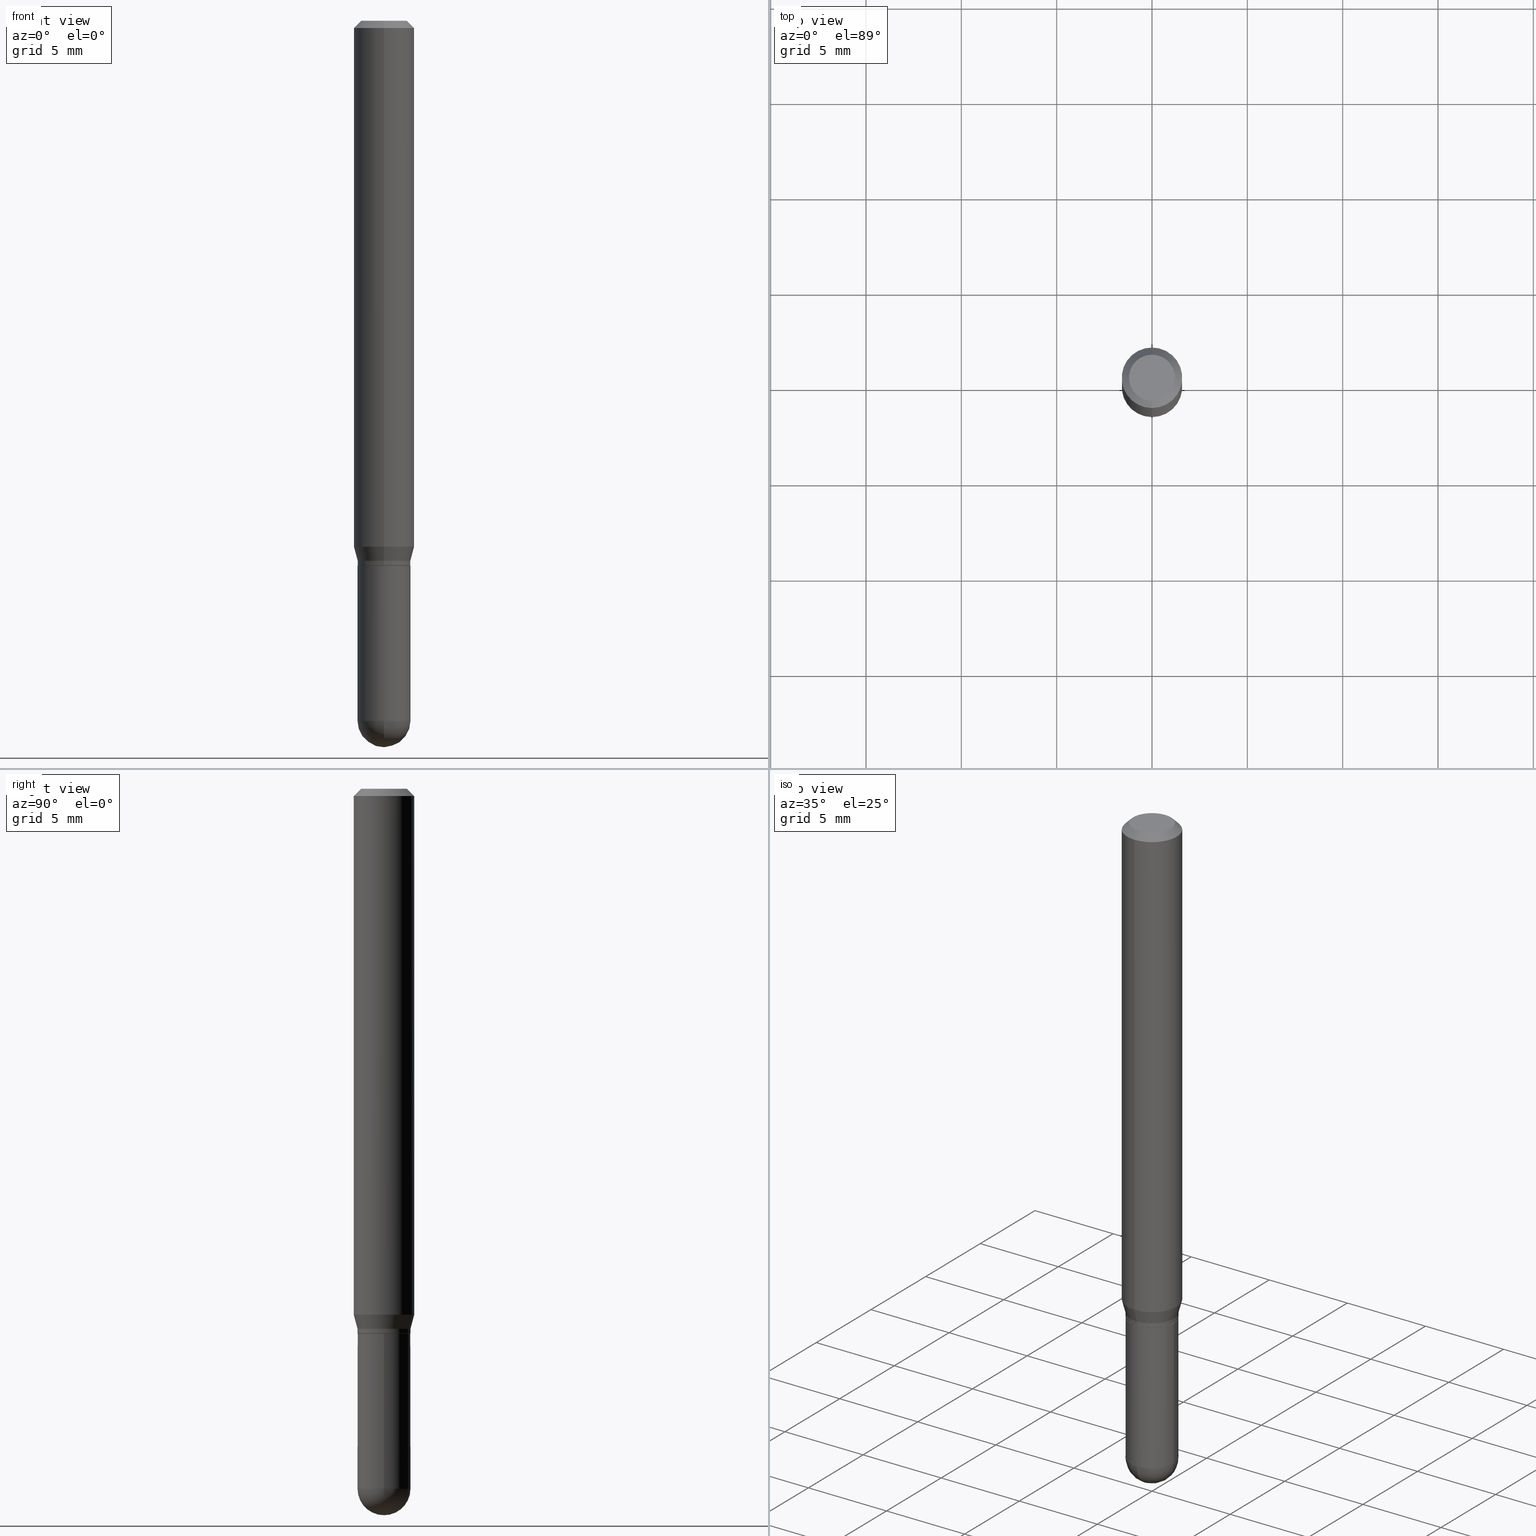
[diagram: canonical four-view strip — front | top / right | iso, engineering-drawing reading convention]
A machine part, canonical four-view strip (front | top / right | iso — engineering-drawing reading convention). The complete STEP part file that produces these views, byte-faithful:
ISO-10303-21;
HEADER;
FILE_DESCRIPTION (( 'STEP AP203' ),
    '1' );
FILE_NAME ('39014.STEP',
    '2024-03-08T12:43:18',
    ( '' ),
    ( '' ),
    'SwSTEP 2.0',
    'SolidWorks 2023',
    '' );
FILE_SCHEMA (( 'CONFIG_CONTROL_DESIGN' ));
ENDSEC;

DATA;
#1 = CIRCLE ( 'NONE', #296, 0.05469999999999999862 ) ;
#2 = FACE_OUTER_BOUND ( 'NONE', #30, .T. ) ;
#3 = VERTEX_POINT ( 'NONE', #398 ) ;
#4 = DIRECTION ( 'NONE',  ( -2.445148059648714686E-29, 3.491940666139061088E-15, 1.000000000000000000 ) ) ;
#5 = EDGE_CURVE ( 'NONE', #106, #423, #444, .T. ) ;
#6 = CARTESIAN_POINT ( 'NONE',  ( 4.440892098500889444E-16, 0.06249999999999619055, -1.085890003700964002 ) ) ;
#7 = DIRECTION ( 'NONE',  ( 2.445148059648714686E-29, -3.491940666139061088E-15, -1.000000000000000000 ) ) ;
#8 = CARTESIAN_POINT ( 'NONE',  ( 0.000000000000000000, 0.000000000000000000, 0.000000000000000000 ) ) ;
#9 = DIRECTION ( 'NONE',  ( -2.445148059648714686E-29, 3.491940666139061088E-15, 1.000000000000000000 ) ) ;
#10 = CIRCLE ( 'NONE', #176, 0.05470000000000000556 ) ;
#11 = PERSON_AND_ORGANIZATION ( #222, #102 ) ;
#12 = AXIS2_PLACEMENT_3D ( 'NONE', #224, #459, #62 ) ;
#13 = ORIENTED_EDGE ( 'NONE', *, *, #348, .T. ) ;
#14 = EDGE_CURVE ( 'NONE', #26, #483, #158, .T. ) ;
#15 = DATE_TIME_ROLE ( 'creation_date' ) ;
#16 = ORIENTED_EDGE ( 'NONE', *, *, #355, .F. ) ;
#17 = DIRECTION ( 'NONE',  ( -6.982962677686266711E-15, -1.000000000000000000, 2.497118824190360155E-15 ) ) ;
#18 = PERSON_AND_ORGANIZATION ( #222, #102 ) ;
#19 = DIRECTION ( 'NONE',  ( 2.438088387897960049E-29, -3.491481338843145188E-15, -1.000000000000000000 ) ) ;
#20 = ADVANCED_FACE ( 'NONE', ( #255 ), #21, .T. ) ;
#21 = CONICAL_SURFACE ( 'NONE', #409, 0.06250000000000000000, 0.7853981633974483900 ) ;
#22 = AXIS2_PLACEMENT_3D ( 'NONE', #397, #386, #237 ) ;
#23 = LINE ( 'NONE', #336, #393 ) ;
#24 = COORDINATED_UNIVERSAL_TIME_OFFSET ( 5, 0, .BEHIND. ) ;
#25 = DIRECTION ( 'NONE',  ( 6.982962677686265922E-15, 1.000000000000000000, -3.491940666139060694E-15 ) ) ;
#26 = VERTEX_POINT ( 'NONE', #161 ) ;
#27 = SHAPE_DEFINITION_REPRESENTATION ( #61, #46 ) ;
#28 = CARTESIAN_POINT ( 'NONE',  ( 3.667722089473074341E-31, -5.237910999208594418E-17, -0.01500000000000000812 ) ) ;
#29 = DIMENSIONAL_EXPONENTS ( 1.000000000000000000, 0.000000000000000000, 0.000000000000000000, 0.000000000000000000, 0.000000000000000000, 0.000000000000000000, 0.000000000000000000 ) ;
#30 = EDGE_LOOP ( 'NONE', ( #238, #408, #126, #207 ) ) ;
#31 = EDGE_CURVE ( 'NONE', #390, #200, #10, .T. ) ;
#32 = CARTESIAN_POINT ( 'NONE',  ( -4.364351673553912750E-16, -0.06250000000000005551, -0.01499999999999979128 ) ) ;
#33 = EDGE_LOOP ( 'NONE', ( #344, #466 ) ) ;
#34 = VECTOR ( 'NONE', #279, 39.37007874015748143 ) ;
#35 = DIRECTION ( 'NONE',  ( -2.445148059648714686E-29, 3.491940666139061088E-15, 1.000000000000000000 ) ) ;
#36 = EDGE_LOOP ( 'NONE', ( #319, #209, #357, #330 ) ) ;
#37 = DIRECTION ( 'NONE',  ( -2.445468806185136597E-29, 3.491481338843145583E-15, 1.000000000000000000 ) ) ;
#38 = VERTEX_POINT ( 'NONE', #257 ) ;
#39 = EDGE_CURVE ( 'NONE', #270, #52, #73, .T. ) ;
#40 = DIRECTION ( 'NONE',  ( 4.937700262164548042E-15, 0.7071067811865451302, -0.7071067811865499042 ) ) ;
#41 = AXIS2_PLACEMENT_3D ( 'NONE', #407, #9, #17 ) ;
#42 = CIRCLE ( 'NONE', #417, 0.05419999999999999818 ) ;
#43 = CC_DESIGN_DATE_AND_TIME_ASSIGNMENT ( #495, #66, ( #484 ) ) ;
#44 = CARTESIAN_POINT ( 'NONE',  ( 3.534436065579377749E-29, -5.046237979029997798E-15, -1.445300000000000029 ) ) ;
#45 = DIRECTION ( 'NONE',  ( -1.000000000000000000, 6.982962677686265922E-15, -4.883557194083112901E-29 ) ) ;
#46 = ADVANCED_BREP_SHAPE_REPRESENTATION ( '39014', ( #419, #254, #148 ), #311 ) ;
#47 = DIRECTION ( 'NONE',  ( -2.445148059648714686E-29, 3.491940666139061088E-15, 1.000000000000000000 ) ) ;
#48 = CARTESIAN_POINT ( 'NONE',  ( 2.726340086508316930E-29, -3.893513842745053460E-15, -1.115000000000000213 ) ) ;
#49 = ADVANCED_FACE ( 'NONE', ( #55 ), #445, .T. ) ;
#50 = AXIS2_PLACEMENT_3D ( 'NONE', #434, #45, #510 ) ;
#51 = FACE_OUTER_BOUND ( 'NONE', #347, .T. ) ;
#52 = VERTEX_POINT ( 'NONE', #441 ) ;
#53 = ADVANCED_FACE ( 'NONE', ( #51 ), #416, .T. ) ;
#54 = COORDINATED_UNIVERSAL_TIME_OFFSET ( 5, 0, .BEHIND. ) ;
#55 = FACE_OUTER_BOUND ( 'NONE', #283, .T. ) ;
#56 = CARTESIAN_POINT ( 'NONE',  ( -4.287811248607203282E-16, -0.06250000000000005551, -0.01499999999999979128 ) ) ;
#57 = AXIS2_PLACEMENT_3D ( 'NONE', #8, #163, #156 ) ;
#58 = CARTESIAN_POINT ( 'NONE',  ( 2.750791567104804618E-29, -3.928433249406443724E-15, -1.125000000000000222 ) ) ;
#59 = CARTESIAN_POINT ( 'NONE',  ( 3.851141627820017007E-16, 0.05419999999999607077, -1.125000000000000222 ) ) ;
#60 = FACE_OUTER_BOUND ( 'NONE', #33, .T. ) ;
#61 = PRODUCT_DEFINITION_SHAPE ( 'NONE', 'NONE',  #263 ) ;
#62 = DIRECTION ( 'NONE',  ( -6.982962677686265133E-15, -1.000000000000000000, 2.497118824190365677E-15 ) ) ;
#63 = VECTOR ( 'NONE', #345, 39.37007874015748143 ) ;
#64 = LOCAL_TIME ( 7, 43, 18.00000000000000000, #421 ) ;
#65 = ORIENTED_EDGE ( 'NONE', *, *, #325, .F. ) ;
#66 = DATE_TIME_ROLE ( 'classification_date' ) ;
#67 = CARTESIAN_POINT ( 'NONE',  ( 3.819680584694743340E-16, 0.05469999999999498180, -1.445300000000000251 ) ) ;
#68 = EDGE_LOOP ( 'NONE', ( #463, #446, #382, #113, #71 ) ) ;
#69 = ADVANCED_FACE ( 'NONE', ( #239 ), #281, .T. ) ;
#70 = CARTESIAN_POINT ( 'NONE',  ( 2.161144490363163213E-46, -3.086352297367912300E-32, -8.838501545275121321E-18 ) ) ;
#71 = ORIENTED_EDGE ( 'NONE', *, *, #31, .T. ) ;
#72 = DIRECTION ( 'NONE',  ( -2.445468806185136597E-29, 3.491481338843145583E-15, 1.000000000000000000 ) ) ;
#73 = CIRCLE ( 'NONE', #356, 0.05419999999999999818 ) ;
#74 = ORIENTED_EDGE ( 'NONE', *, *, #118, .F. ) ;
#75 = CIRCLE ( 'NONE', #12, 0.05470000000000006107 ) ;
#76 = SPHERICAL_SURFACE ( 'NONE', #22, 0.05470000000000006107 ) ;
#77 = ORIENTED_EDGE ( 'NONE', *, *, #39, .T. ) ;
#78 = EDGE_CURVE ( 'NONE', #3, #272, #287, .T. ) ;
#79 = FACE_OUTER_BOUND ( 'NONE', #123, .T. ) ;
#80 = FACE_OUTER_BOUND ( 'NONE', #303, .T. ) ;
#81 = CARTESIAN_POINT ( 'NONE',  ( 0.000000000000000000, 0.000000000000000000, 0.000000000000000000 ) ) ;
#82 = AXIS2_PLACEMENT_3D ( 'NONE', #383, #19, #269 ) ;
#83 = ADVANCED_FACE ( 'NONE', ( #290 ), #165, .T. ) ;
#84 = VERTEX_POINT ( 'NONE', #457 ) ;
#85 = DIRECTION ( 'NONE',  ( -2.445148059648714686E-29, 3.491940666139060694E-15, 1.000000000000000000 ) ) ;
#86 = VERTEX_POINT ( 'NONE', #169 ) ;
#87 = ORIENTED_EDGE ( 'NONE', *, *, #435, .T. ) ;
#88 = EDGE_CURVE ( 'NONE', #26, #38, #110, .T. ) ;
#89 = DIRECTION ( 'NONE',  ( 1.839019923739606232E-15, 0.2588190451025257910, 0.9659258262890669799 ) ) ;
#90 = CARTESIAN_POINT ( 'NONE',  ( 0.05469999999999999862, -4.309884564667978405E-15, -1.125000000000000222 ) ) ;
#91 =( CONVERSION_BASED_UNIT ( 'INCH', #174 ) LENGTH_UNIT ( ) NAMED_UNIT ( #29 ) );
#92 = EDGE_LOOP ( 'NONE', ( #190, #211 ) ) ;
#93 = DIRECTION ( 'NONE',  ( -2.445148059648714686E-29, 3.491940666139061088E-15, 1.000000000000000000 ) ) ;
#94 = PERSON_AND_ORGANIZATION ( #222, #102 ) ;
#95 = AXIS2_PLACEMENT_3D ( 'NONE', #349, #119, #471 ) ;
#96 = LOCAL_TIME ( 7, 43, 18.00000000000000000, #260 ) ;
#97 = SECURITY_CLASSIFICATION_LEVEL ( 'unclassified' ) ;
#98 =( NAMED_UNIT ( * ) SI_UNIT ( $, .STERADIAN. ) SOLID_ANGLE_UNIT ( ) );
#99 = LINE ( 'NONE', #496, #133 ) ;
#100 = CALENDAR_DATE ( 2024, 8, 3 ) ;
#101 = VECTOR ( 'NONE', #40, 39.37007874015748143 ) ;
#102 = ORGANIZATION ( 'UNSPECIFIED', 'UNSPECIFIED', '' ) ;
#103 = EDGE_LOOP ( 'NONE', ( #350, #125, #313, #13, #230 ) ) ;
#104 = EDGE_CURVE ( 'NONE', #86, #268, #404, .T. ) ;
#105 = FACE_OUTER_BOUND ( 'NONE', #276, .T. ) ;
#106 = VERTEX_POINT ( 'NONE', #90 ) ;
#107 = VERTEX_POINT ( 'NONE', #219 ) ;
#108 = ADVANCED_FACE ( 'NONE', ( #212 ), #320, .T. ) ;
#109 = CARTESIAN_POINT ( 'NONE',  ( 2.655161835541346993E-29, -3.791863462877290691E-15, -1.085890003700963780 ) ) ;
#110 = CIRCLE ( 'NONE', #41, 0.05470000000000018597 ) ;
#111 = VECTOR ( 'NONE', #85, 39.37007874015748143 ) ;
#112 = DIRECTION ( 'NONE',  ( -2.445468806185136877E-29, 3.491481338843145188E-15, 1.000000000000000000 ) ) ;
#113 = ORIENTED_EDGE ( 'NONE', *, *, #348, .F. ) ;
#114 = DIRECTION ( 'NONE',  ( -2.445148059648714686E-29, 3.491940666139061088E-15, 1.000000000000000000 ) ) ;
#115 = DIRECTION ( 'NONE',  ( -2.445148059648714686E-29, 3.491940666139061088E-15, 1.000000000000000000 ) ) ;
#116 = CARTESIAN_POINT ( 'NONE',  ( 0.05470000000000000556, -4.869045301083706902E-15, -1.445300000000000029 ) ) ;
#117 = CIRCLE ( 'NONE', #447, 0.06250000000000000000 ) ;
#118 = EDGE_CURVE ( 'NONE', #200, #236, #243, .T. ) ;
#119 = DIRECTION ( 'NONE',  ( -2.445148059648714686E-29, 3.491940666139061088E-15, 1.000000000000000000 ) ) ;
#120 = LINE ( 'NONE', #321, #111 ) ;
#121 = DIRECTION ( 'NONE',  ( -6.982962677686266711E-15, -1.000000000000000000, 2.520154975705040126E-15 ) ) ;
#122 = CARTESIAN_POINT ( 'NONE',  ( 3.667722089473074341E-31, -5.237910999208594418E-17, -0.01500000000000000812 ) ) ;
#123 = EDGE_LOOP ( 'NONE', ( #469, #478, #500, #503 ) ) ;
#124 = VERTEX_POINT ( 'NONE', #251 ) ;
#125 = ORIENTED_EDGE ( 'NONE', *, *, #388, .T. ) ;
#126 = ORIENTED_EDGE ( 'NONE', *, *, #442, .F. ) ;
#127 = APPLICATION_CONTEXT ( 'configuration controlled 3d designs of mechanical parts and assemblies' ) ;
#128 = DIRECTION ( 'NONE',  ( 1.000000000000000000, -6.982962677686266711E-15, 4.876176775795935793E-29 ) ) ;
#129 = PERSON_AND_ORGANIZATION ( #222, #102 ) ;
#130 = DIRECTION ( 'NONE',  ( -7.105427357601001070E-15, -1.000000000000000000, 0.000000000000000000 ) ) ;
#131 = EDGE_CURVE ( 'NONE', #141, #86, #428, .T. ) ;
#132 = AXIS2_PLACEMENT_3D ( 'NONE', #285, #217, #247 ) ;
#133 = VECTOR ( 'NONE', #265, 39.37007874015748143 ) ;
#134 = DIRECTION ( 'NONE',  ( 1.000000000000000000, 0.000000000000000000, 0.000000000000000000 ) ) ;
#135 = CARTESIAN_POINT ( 'NONE',  ( -3.886668764607396383E-16, -0.05470000000000508483, -1.445299999999999807 ) ) ;
#136 = EDGE_CURVE ( 'NONE', #52, #124, #401, .T. ) ;
#137 = DIRECTION ( 'NONE',  ( -2.445468806185136877E-29, 3.491481338843145188E-15, 1.000000000000000000 ) ) ;
#138 = ORIENTED_EDGE ( 'NONE', *, *, #206, .F. ) ;
#139 = CIRCLE ( 'NONE', #507, 0.06250000000000000000 ) ;
#140 = PLANE ( 'NONE',  #82 ) ;
#141 = VERTEX_POINT ( 'NONE', #371 ) ;
#142 = DIRECTION ( 'NONE',  ( -2.445148059648714686E-29, 3.491940666139061088E-15, 1.000000000000000000 ) ) ;
#143 = ORIENTED_EDGE ( 'NONE', *, *, #442, .T. ) ;
#144 = CARTESIAN_POINT ( 'NONE',  ( 4.364351673553919652E-16, 0.06249999999999995143, -0.01500000000000022669 ) ) ;
#145 = ORIENTED_EDGE ( 'NONE', *, *, #277, .F. ) ;
#146 = LINE ( 'NONE', #189, #154 ) ;
#147 = ORIENTED_EDGE ( 'NONE', *, *, #501, .F. ) ;
#148 = AXIS2_PLACEMENT_3D ( 'NONE', #210, #490, #134 ) ;
#149 = DIRECTION ( 'NONE',  ( -2.445148059648714686E-29, 3.491940666139061088E-15, 1.000000000000000000 ) ) ;
#150 = DIRECTION ( 'NONE',  ( 1.000000000000000000, -6.982962677686266711E-15, 4.876176775795935793E-29 ) ) ;
#151 = EDGE_CURVE ( 'NONE', #3, #200, #475, .T. ) ;
#152 = CYLINDRICAL_SURFACE ( 'NONE', #266, 0.05469999999999999862 ) ;
#153 = CARTESIAN_POINT ( 'NONE',  ( 0.000000000000000000, 0.000000000000000000, 0.000000000000000000 ) ) ;
#154 = VECTOR ( 'NONE', #112, 39.37007874015748143 ) ;
#155 = CC_DESIGN_SECURITY_CLASSIFICATION ( #484, ( #317 ) ) ;
#156 = DIRECTION ( 'NONE',  ( -6.982962677686265922E-15, -1.000000000000000000, 3.491940666139060694E-15 ) ) ;
#157 = UNCERTAINTY_MEASURE_WITH_UNIT (LENGTH_MEASURE( 1.000000000000000082E-05 ), #91, 'distance_accuracy_value', 'NONE');
#158 = LINE ( 'NONE', #450, #436 ) ;
#159 = DIRECTION ( 'NONE',  ( -2.445148059648714686E-29, 3.491940666139061088E-15, 1.000000000000000000 ) ) ;
#160 = CC_DESIGN_PERSON_AND_ORGANIZATION_ASSIGNMENT ( #129, #170, ( #317 ) ) ;
#161 = CARTESIAN_POINT ( 'NONE',  ( 4.163780431554463142E-16, 0.05469999999999629325, -1.115000000000000213 ) ) ;
#162 = DIRECTION ( 'NONE',  ( -6.982962677686265922E-15, -1.000000000000000000, 3.491940666139061088E-15 ) ) ;
#163 = DIRECTION ( 'NONE',  ( -2.445148059648714686E-29, 3.491940666139061088E-15, 1.000000000000000000 ) ) ;
#164 = ORIENTED_EDGE ( 'NONE', *, *, #88, .F. ) ;
#165 = CONICAL_SURFACE ( 'NONE', #332, 0.05470000000000018597, 0.2617993877991511287 ) ;
#166 = VECTOR ( 'NONE', #240, 39.37007874015748143 ) ;
#167 = APPROVAL_DATE_TIME ( #411, #284 ) ;
#168 = DIRECTION ( 'NONE',  ( -2.445468806185136597E-29, 3.491481338843145583E-15, 1.000000000000000000 ) ) ;
#169 = CARTESIAN_POINT ( 'NONE',  ( -3.773273898774340269E-16, -0.04749999999999999362, 1.570286800963302463E-16 ) ) ;
#170 = PERSON_AND_ORGANIZATION_ROLE ( 'creator' ) ;
#171 = ORIENTED_EDGE ( 'NONE', *, *, #312, .F. ) ;
#172 = DIRECTION ( 'NONE',  ( -2.445468806185136597E-29, 3.491481338843145583E-15, 1.000000000000000000 ) ) ;
#173 = CC_DESIGN_PERSON_AND_ORGANIZATION_ASSIGNMENT ( #220, #329, ( #263 ) ) ;
#174 = LENGTH_MEASURE_WITH_UNIT ( LENGTH_MEASURE( 0.02539999999999999897 ), #262 );
#175 = PLANE ( 'NONE',  #366 ) ;
#176 = AXIS2_PLACEMENT_3D ( 'NONE', #489, #168, #368 ) ;
#177 = CALENDAR_DATE ( 2024, 8, 3 ) ;
#178 = AXIS2_PLACEMENT_3D ( 'NONE', #122, #242, #394 ) ;
#179 = LOCAL_TIME ( 7, 43, 18.00000000000000000, #24 ) ;
#180 = DIRECTION ( 'NONE',  ( -2.445148059648714406E-29, 3.491940666139060694E-15, 1.000000000000000000 ) ) ;
#181 = CALENDAR_DATE ( 2024, 8, 3 ) ;
#182 = ADVANCED_FACE ( 'NONE', ( #60 ), #140, .F. ) ;
#183 = DIRECTION ( 'NONE',  ( -2.445148059648714686E-29, 3.491940666139061088E-15, 1.000000000000000000 ) ) ;
#184 = EDGE_LOOP ( 'NONE', ( #143, #308, #253, #306 ) ) ;
#185 = ORIENTED_EDGE ( 'NONE', *, *, #104, .T. ) ;
#186 = AXIS2_PLACEMENT_3D ( 'NONE', #314, #115, #395 ) ;
#187 = ORIENTED_EDGE ( 'NONE', *, *, #473, .T. ) ;
#188 = CARTESIAN_POINT ( 'NONE',  ( 4.440892098500625669E-16, 0.06250000000000000000, -2.182462916336913180E-16 ) ) ;
#189 = CARTESIAN_POINT ( 'NONE',  ( 0.05469999999999999862, -3.819680584694387859E-16, 2.667268696360376954E-30 ) ) ;
#190 = ORIENTED_EDGE ( 'NONE', *, *, #131, .T. ) ;
#191 = CC_DESIGN_PERSON_AND_ORGANIZATION_ASSIGNMENT ( #295, #455, ( #317 ) ) ;
#192 = CYLINDRICAL_SURFACE ( 'NONE', #233, 0.06250000000000000000 ) ;
#193 = ORIENTED_EDGE ( 'NONE', *, *, #78, .T. ) ;
#194 = DIRECTION ( 'NONE',  ( -6.982962677686265922E-15, -1.000000000000000000, 3.483106191921935554E-15 ) ) ;
#195 = AXIS2_PLACEMENT_3D ( 'NONE', #378, #460, #25 ) ;
#196 = APPROVAL_PERSON_ORGANIZATION ( #216, #402, #367 ) ;
#197 = DIRECTION ( 'NONE',  ( -2.445468806185136597E-29, 3.491481338843145583E-15, 1.000000000000000000 ) ) ;
#198 = ADVANCED_FACE ( 'NONE', ( #373 ), #299, .F. ) ;
#199 = CYLINDRICAL_SURFACE ( 'NONE', #326, 0.05470000000000011658 ) ;
#200 = VERTEX_POINT ( 'NONE', #67 ) ;
#201 = CARTESIAN_POINT ( 'NONE',  ( 2.726340086508316930E-29, -3.893513842745053460E-15, -1.115000000000000213 ) ) ;
#202 = FACE_OUTER_BOUND ( 'NONE', #486, .T. ) ;
#203 = DIRECTION ( 'NONE',  ( -2.445148059648714686E-29, 3.491940666139061088E-15, 1.000000000000000000 ) ) ;
#204 = DIRECTION ( 'NONE',  ( -4.851104656540964275E-15, -0.7071067811865500152, -0.7071067811865450192 ) ) ;
#205 = VECTOR ( 'NONE', #369, 39.37007874015748143 ) ;
#206 = EDGE_CURVE ( 'NONE', #86, #141, #274, .T. ) ;
#207 = ORIENTED_EDGE ( 'NONE', *, *, #473, .F. ) ;
#208 = DIRECTION ( 'NONE',  ( -6.982962677686266711E-15, -1.000000000000000000, 2.497118824190360155E-15 ) ) ;
#209 = ORIENTED_EDGE ( 'NONE', *, *, #381, .T. ) ;
#210 = CARTESIAN_POINT ( 'NONE',  ( 0.000000000000000000, 0.000000000000000000, 0.000000000000000000 ) ) ;
#211 = ORIENTED_EDGE ( 'NONE', *, *, #206, .T. ) ;
#212 = FACE_OUTER_BOUND ( 'NONE', #103, .T. ) ;
#213 = CLOSED_SHELL ( 'NONE', ( #412, #420, #182, #396, #108 ) ) ;
#214 = CIRCLE ( 'NONE', #225, 0.06250000000000000000 ) ;
#215 = CC_DESIGN_APPROVAL ( #375, ( #484 ) ) ;
#216 = PERSON_AND_ORGANIZATION ( #222, #102 ) ;
#217 = DIRECTION ( 'NONE',  ( -2.445148059648714686E-29, 3.491940666139061088E-15, 1.000000000000000000 ) ) ;
#218 = EDGE_CURVE ( 'NONE', #38, #107, #23, .T. ) ;
#219 = CARTESIAN_POINT ( 'NONE',  ( -4.364351673553652426E-16, -0.06250000000000380251, -1.085890003700963558 ) ) ;
#220 = PERSON_AND_ORGANIZATION ( #222, #102 ) ;
#221 = CARTESIAN_POINT ( 'NONE',  ( -3.784765771305681686E-16, -0.05420000000000392559, -1.125000000000000000 ) ) ;
#222 = PERSON ( 'UNSPECIFIED', 'UNSPECIFIED', 'UNSPECIFIED', ('UNSPECIFIED'), ('UNSPECIFIED'), ('UNSPECIFIED') ) ;
#223 = CIRCLE ( 'NONE', #95, 0.05470000000000006107 ) ;
#224 = CARTESIAN_POINT ( 'NONE',  ( 2.749568993074979869E-29, -3.926687279073374408E-15, -1.124500000000000055 ) ) ;
#225 = AXIS2_PLACEMENT_3D ( 'NONE', #499, #142, #331 ) ;
#226 = DIRECTION ( 'NONE',  ( 1.000000000000000000, -6.982962677686265922E-15, 4.883557194083112340E-29 ) ) ;
#227 = ORIENTED_EDGE ( 'NONE', *, *, #39, .F. ) ;
#228 = PERSON_AND_ORGANIZATION ( #222, #102 ) ;
#229 = DIRECTION ( 'NONE',  ( -6.982962677686266711E-15, -1.000000000000000000, 3.491940666139061088E-15 ) ) ;
#230 = ORIENTED_EDGE ( 'NONE', *, *, #429, .F. ) ;
#231 = CARTESIAN_POINT ( 'NONE',  ( -0.05469999999999999862, 3.886668764607747919E-16, -2.690657494369433708E-30 ) ) ;
#232 = ORIENTED_EDGE ( 'NONE', *, *, #151, .F. ) ;
#233 = AXIS2_PLACEMENT_3D ( 'NONE', #81, #47, #275 ) ;
#234 = EDGE_CURVE ( 'NONE', #268, #286, #400, .T. ) ;
#235 = FACE_OUTER_BOUND ( 'NONE', #505, .T. ) ;
#236 = VERTEX_POINT ( 'NONE', #414 ) ;
#237 = DIRECTION ( 'NONE',  ( 6.982962677686265922E-15, 1.000000000000000000, -4.994237648380731355E-15 ) ) ;
#238 = ORIENTED_EDGE ( 'NONE', *, *, #325, .T. ) ;
#239 = FACE_OUTER_BOUND ( 'NONE', #403, .T. ) ;
#240 = DIRECTION ( 'NONE',  ( -4.937700262164674260E-15, -0.7071067811865632269, 0.7071067811865319186 ) ) ;
#241 = ADVANCED_FACE ( 'NONE', ( #105 ), #175, .F. ) ;
#242 = DIRECTION ( 'NONE',  ( 2.445148059648714686E-29, -3.491940666139061088E-15, -1.000000000000000000 ) ) ;
#243 = CIRCLE ( 'NONE', #437, 0.05470000000000000556 ) ;
#244 = AXIS2_PLACEMENT_3D ( 'NONE', #44, #197, #352 ) ;
#245 = CARTESIAN_POINT ( 'NONE',  ( -0.05469999999999999862, -4.098410366153493916E-15, -1.125000000000000222 ) ) ;
#246 = DESIGN_CONTEXT ( 'detailed design', #127, 'design' ) ;
#247 = DIRECTION ( 'NONE',  ( -6.982962677686266711E-15, -1.000000000000000000, 2.520154975705040126E-15 ) ) ;
#248 = CARTESIAN_POINT ( 'NONE',  ( 2.750791567104804618E-29, -3.928433249406443724E-15, -1.125000000000000222 ) ) ;
#249 = ORIENTED_EDGE ( 'NONE', *, *, #78, .F. ) ;
#250 = ORIENTED_EDGE ( 'NONE', *, *, #307, .T. ) ;
#251 = CARTESIAN_POINT ( 'NONE',  ( 3.886668764608023034E-16, 0.05469999999999607815, -1.124500000000000277 ) ) ;
#252 = CONICAL_SURFACE ( 'NONE', #186, 0.05419999999999999818, 0.7853981633974739252 ) ;
#253 = ORIENTED_EDGE ( 'NONE', *, *, #271, .F. ) ;
#254 = MANIFOLD_SOLID_BREP ( 'Body-Move/Copy2[2]', #374 ) ;
#255 = FACE_OUTER_BOUND ( 'NONE', #362, .T. ) ;
#256 = EDGE_CURVE ( 'NONE', #236, #423, #424, .T. ) ;
#257 = CARTESIAN_POINT ( 'NONE',  ( -3.819680584694128028E-16, -0.05470000000000407869, -1.114999999999999991 ) ) ;
#258 = DIRECTION ( 'NONE',  ( -6.982962677686266711E-15, -1.000000000000000000, 3.491940666139061088E-15 ) ) ;
#259 = AXIS2_PLACEMENT_3D ( 'NONE', #70, #334, #229 ) ;
#260 = COORDINATED_UNIVERSAL_TIME_OFFSET ( 5, 0, .BEHIND. ) ;
#261 = DIRECTION ( 'NONE',  ( -6.982962677686266711E-15, -1.000000000000000000, 2.497118824190360155E-15 ) ) ;
#262 =( LENGTH_UNIT ( ) NAMED_UNIT ( * ) SI_UNIT ( $, .METRE. ) );
#263 = PRODUCT_DEFINITION ( 'UNKNOWN', '', #317, #246 ) ;
#264 = DIRECTION ( 'NONE',  ( -1.807323732225336056E-15, -0.2588190451025190186, 0.9659258262890687563 ) ) ;
#265 = DIRECTION ( 'NONE',  ( -2.445148059648714686E-29, 3.491940666139060694E-15, 1.000000000000000000 ) ) ;
#266 = AXIS2_PLACEMENT_3D ( 'NONE', #502, #72, #150 ) ;
#267 = DATE_AND_TIME ( #100, #64 ) ;
#268 = VERTEX_POINT ( 'NONE', #32 ) ;
#269 = DIRECTION ( 'NONE',  ( -1.000000000000000000, 6.982962677686265922E-15, -4.876176775795935793E-29 ) ) ;
#270 = VERTEX_POINT ( 'NONE', #221 ) ;
#271 = EDGE_CURVE ( 'NONE', #107, #483, #214, .T. ) ;
#272 = VERTEX_POINT ( 'NONE', #135 ) ;
#273 = AXIS2_PLACEMENT_3D ( 'NONE', #153, #4, #162 ) ;
#274 = CIRCLE ( 'NONE', #259, 0.04749999999999999362 ) ;
#275 = DIRECTION ( 'NONE',  ( -6.982962677686265922E-15, -1.000000000000000000, 3.491940666139061088E-15 ) ) ;
#276 = EDGE_LOOP ( 'NONE', ( #227, #340 ) ) ;
#277 = EDGE_CURVE ( 'NONE', #124, #26, #99, .T. ) ;
#278 = SPHERICAL_SURFACE ( 'NONE', #50, 0.05470000000000006107 ) ;
#279 = DIRECTION ( 'NONE',  ( -2.445148059648714686E-29, 3.491940666139060694E-15, 1.000000000000000000 ) ) ;
#280 = VECTOR ( 'NONE', #137, 39.37007874015748143 ) ;
#281 = CYLINDRICAL_SURFACE ( 'NONE', #273, 0.06250000000000000000 ) ;
#282 = ORIENTED_EDGE ( 'NONE', *, *, #31, .F. ) ;
#283 = EDGE_LOOP ( 'NONE', ( #77, #432, #65, #399 ) ) ;
#284 = APPROVAL ( #372, 'UNSPECIFIED' ) ;
#285 = CARTESIAN_POINT ( 'NONE',  ( 2.750791567104804618E-29, -3.928433249406443724E-15, -1.125000000000000222 ) ) ;
#286 = VERTEX_POINT ( 'NONE', #301 ) ;
#287 = CIRCLE ( 'NONE', #480, 0.05470000000000006107 ) ;
#288 = MECHANICAL_CONTEXT ( 'NONE', #343, 'mechanical' ) ;
#289 = DIRECTION ( 'NONE',  ( 1.000000000000000000, -6.982962677686269866E-15, 0.000000000000000000 ) ) ;
#290 = FACE_OUTER_BOUND ( 'NONE', #184, .T. ) ;
#291 = EDGE_CURVE ( 'NONE', #270, #84, #472, .T. ) ;
#292 = PERSON_AND_ORGANIZATION_ROLE ( 'design_owner' ) ;
#293 = CARTESIAN_POINT ( 'NONE',  ( 2.751152406958279232E-29, -3.927916506198539224E-15, -1.125000000000000222 ) ) ;
#294 = DIRECTION ( 'NONE',  ( 1.000000000000000000, -6.982962677686259611E-15, 0.000000000000000000 ) ) ;
#295 = PERSON_AND_ORGANIZATION ( #222, #102 ) ;
#296 = AXIS2_PLACEMENT_3D ( 'NONE', #389, #37, #342 ) ;
#297 = APPROVAL_PERSON_ORGANIZATION ( #18, #284, #449 ) ;
#298 = ADVANCED_FACE ( 'NONE', ( #79 ), #252, .T. ) ;
#299 = PLANE ( 'NONE',  #195 ) ;
#300 = CALENDAR_DATE ( 2024, 8, 3 ) ;
#301 = CARTESIAN_POINT ( 'NONE',  ( 4.440892098500893388E-16, 0.06249999999999995143, -0.01500000000000022669 ) ) ;
#302 = PRODUCT ( '39014', '39014', '', ( #288 ) ) ;
#303 = EDGE_LOOP ( 'NONE', ( #359, #427, #431, #250 ) ) ;
#304 = AXIS2_PLACEMENT_3D ( 'NONE', #328, #172, #128 ) ;
#305 = DIRECTION ( 'NONE',  ( -6.982962677686265922E-15, -1.000000000000000000, 3.483106191921935554E-15 ) ) ;
#306 = ORIENTED_EDGE ( 'NONE', *, *, #218, .F. ) ;
#307 = EDGE_CURVE ( 'NONE', #286, #268, #117, .T. ) ;
#308 = ORIENTED_EDGE ( 'NONE', *, *, #14, .T. ) ;
#309 = FACE_OUTER_BOUND ( 'NONE', #68, .T. ) ;
#310 = ORIENTED_EDGE ( 'NONE', *, *, #151, .T. ) ;
#311 =( GEOMETRIC_REPRESENTATION_CONTEXT ( 3 ) GLOBAL_UNCERTAINTY_ASSIGNED_CONTEXT ( ( #157 ) ) GLOBAL_UNIT_ASSIGNED_CONTEXT ( ( #91, #405, #98 ) ) REPRESENTATION_CONTEXT ( 'NONE', 'WORKASPACE' ) );
#312 = EDGE_CURVE ( 'NONE', #107, #268, #430, .T. ) ;
#313 = ORIENTED_EDGE ( 'NONE', *, *, #501, .T. ) ;
#314 = CARTESIAN_POINT ( 'NONE',  ( 2.750791567104804618E-29, -3.928433249406443724E-15, -1.125000000000000222 ) ) ;
#315 = DIRECTION ( 'NONE',  ( -6.982962677686265922E-15, -1.000000000000000000, 4.370956789862821150E-15 ) ) ;
#316 = DIRECTION ( 'NONE',  ( -2.445148059648714686E-29, 3.491940666139061088E-15, 1.000000000000000000 ) ) ;
#317 = PRODUCT_DEFINITION_FORMATION_WITH_SPECIFIED_SOURCE ( 'ANY', '', #302, .NOT_KNOWN. ) ;
#318 = ADVANCED_FACE ( 'NONE', ( #202 ), #199, .T. ) ;
#319 = ORIENTED_EDGE ( 'NONE', *, *, #435, .F. ) ;
#320 = CYLINDRICAL_SURFACE ( 'NONE', #304, 0.05469999999999999862 ) ;
#321 = CARTESIAN_POINT ( 'NONE',  ( -3.819680584694395748E-16, -0.05470000000000011658, 1.910091544378070355E-16 ) ) ;
#322 = DIRECTION ( 'NONE',  ( -6.982962677686266711E-15, -1.000000000000000000, 2.497118824190360155E-15 ) ) ;
#323 = DIRECTION ( 'NONE',  ( -1.000000000000000000, 7.105427357601001070E-15, -4.926315508542082329E-29 ) ) ;
#324 = ORIENTED_EDGE ( 'NONE', *, *, #381, .F. ) ;
#325 = EDGE_CURVE ( 'NONE', #84, #124, #223, .T. ) ;
#326 = AXIS2_PLACEMENT_3D ( 'NONE', #504, #476, #509 ) ;
#327 = EDGE_LOOP ( 'NONE', ( #249, #310, #282, #147 ) ) ;
#328 = CARTESIAN_POINT ( 'NONE',  ( 0.000000000000000000, 0.000000000000000000, 0.000000000000000000 ) ) ;
#329 = PERSON_AND_ORGANIZATION_ROLE ( 'creator' ) ;
#330 = ORIENTED_EDGE ( 'NONE', *, *, #307, .F. ) ;
#331 = DIRECTION ( 'NONE',  ( -6.982962677686265922E-15, -1.000000000000000000, 4.370956789862821150E-15 ) ) ;
#332 = AXIS2_PLACEMENT_3D ( 'NONE', #451, #159, #261 ) ;
#333 = AXIS2_PLACEMENT_3D ( 'NONE', #201, #316, #208 ) ;
#334 = DIRECTION ( 'NONE',  ( -2.445148059648714686E-29, 3.491940666139061088E-15, 1.000000000000000000 ) ) ;
#335 = APPROVAL_DATE_TIME ( #267, #375 ) ;
#336 = CARTESIAN_POINT ( 'NONE',  ( -3.819680584694128028E-16, -0.05470000000000407869, -1.114999999999999991 ) ) ;
#337 = ORIENTED_EDGE ( 'NONE', *, *, #271, .T. ) ;
#338 = CC_DESIGN_PERSON_AND_ORGANIZATION_ASSIGNMENT ( #11, #292, ( #302 ) ) ;
#339 = DIRECTION ( 'NONE',  ( 6.982962677686265133E-15, 1.000000000000000000, 0.000000000000000000 ) ) ;
#340 = ORIENTED_EDGE ( 'NONE', *, *, #477, .F. ) ;
#341 = CONICAL_SURFACE ( 'NONE', #178, 0.06250000000000000000, 0.7853981633974483900 ) ;
#342 = DIRECTION ( 'NONE',  ( 1.000000000000000000, -6.982962677686269866E-15, 0.000000000000000000 ) ) ;
#343 = APPLICATION_CONTEXT ( 'configuration controlled 3d designs of mechanical parts and assemblies' ) ;
#344 = ORIENTED_EDGE ( 'NONE', *, *, #5, .T. ) ;
#345 = DIRECTION ( 'NONE',  ( -2.445148059648714686E-29, 3.491940666139060694E-15, 1.000000000000000000 ) ) ;
#346 = FACE_OUTER_BOUND ( 'NONE', #327, .T. ) ;
#347 = EDGE_LOOP ( 'NONE', ( #497, #511, #387, #324 ) ) ;
#348 = EDGE_CURVE ( 'NONE', #390, #106, #146, .T. ) ;
#349 = CARTESIAN_POINT ( 'NONE',  ( 2.749568993074979869E-29, -3.926687279073374408E-15, -1.124500000000000055 ) ) ;
#350 = ORIENTED_EDGE ( 'NONE', *, *, #256, .F. ) ;
#351 = CIRCLE ( 'NONE', #333, 0.05470000000000018597 ) ;
#352 = DIRECTION ( 'NONE',  ( 1.000000000000000000, -6.982962677686259611E-15, 0.000000000000000000 ) ) ;
#353 = DIRECTION ( 'NONE',  ( -2.445468806185136597E-29, 3.491481338843145583E-15, 1.000000000000000000 ) ) ;
#354 = CARTESIAN_POINT ( 'NONE',  ( -3.784765771305681686E-16, -0.05420000000000392559, -1.125000000000000000 ) ) ;
#355 = EDGE_CURVE ( 'NONE', #141, #286, #439, .T. ) ;
#356 = AXIS2_PLACEMENT_3D ( 'NONE', #58, #440, #121 ) ;
#357 = ORIENTED_EDGE ( 'NONE', *, *, #312, .T. ) ;
#358 = PRODUCT_RELATED_PRODUCT_CATEGORY ( 'detail', '', ( #302 ) ) ;
#359 = ORIENTED_EDGE ( 'NONE', *, *, #104, .F. ) ;
#360 = ADVANCED_FACE ( 'NONE', ( #468 ), #192, .T. ) ;
#361 = CYLINDRICAL_SURFACE ( 'NONE', #57, 0.05470000000000011658 ) ;
#362 = EDGE_LOOP ( 'NONE', ( #138, #185, #379, #16 ) ) ;
#363 = COORDINATED_UNIVERSAL_TIME_OFFSET ( 5, 0, .BEHIND. ) ;
#364 = DIRECTION ( 'NONE',  ( -2.445468806185136597E-29, 3.491481338843145583E-15, 1.000000000000000000 ) ) ;
#365 = AXIS2_PLACEMENT_3D ( 'NONE', #293, #364, #289 ) ;
#366 = AXIS2_PLACEMENT_3D ( 'NONE', #462, #180, #492 ) ;
#367 = APPROVAL_ROLE ( '' ) ;
#368 = DIRECTION ( 'NONE',  ( 1.000000000000000000, -6.982962677686259611E-15, 0.000000000000000000 ) ) ;
#369 = DIRECTION ( 'NONE',  ( 5.024295867788190974E-15, 0.7071067811865681119, 0.7071067811865270336 ) ) ;
#370 = APPROVAL_STATUS ( 'not_yet_approved' ) ;
#371 = CARTESIAN_POINT ( 'NONE',  ( 3.840629472727447874E-16, 0.04749999999999999362, -1.747056831868805136E-16 ) ) ;
#372 = APPROVAL_STATUS ( 'not_yet_approved' ) ;
#373 = FACE_OUTER_BOUND ( 'NONE', #92, .T. ) ;
#374 = CLOSED_SHELL ( 'NONE', ( #454, #49, #20, #69, #83, #53, #360, #487, #198, #241, #298, #318 ) ) ;
#375 = APPROVAL ( #380, 'UNSPECIFIED' ) ;
#376 = CIRCLE ( 'NONE', #244, 0.05470000000000000556 ) ;
#377 = LOCAL_TIME ( 7, 43, 18.00000000000000000, #54 ) ;
#378 = CARTESIAN_POINT ( 'NONE',  ( 3.316907271900976096E-16, 0.04749999999999999362, -1.702864324142429345E-16 ) ) ;
#379 = ORIENTED_EDGE ( 'NONE', *, *, #234, .T. ) ;
#380 = APPROVAL_STATUS ( 'not_yet_approved' ) ;
#381 = EDGE_CURVE ( 'NONE', #483, #107, #139, .T. ) ;
#382 = ORIENTED_EDGE ( 'NONE', *, *, #5, .F. ) ;
#383 = CARTESIAN_POINT ( 'NONE',  ( 3.819680584694662481E-16, 0.05469999999999607121, -1.125000000000000222 ) ) ;
#384 = ORIENTED_EDGE ( 'NONE', *, *, #388, .F. ) ;
#385 = APPROVAL_PERSON_ORGANIZATION ( #228, #375, #461 ) ;
#386 = DIRECTION ( 'NONE',  ( -1.000000000000000000, 6.982962677686265922E-15, -4.883557194083112901E-29 ) ) ;
#387 = ORIENTED_EDGE ( 'NONE', *, *, #218, .T. ) ;
#388 = EDGE_CURVE ( 'NONE', #236, #272, #498, .T. ) ;
#389 = CARTESIAN_POINT ( 'NONE',  ( 2.751152406958279232E-29, -3.927916506198539224E-15, -1.125000000000000222 ) ) ;
#390 = VERTEX_POINT ( 'NONE', #116 ) ;
#391 = CARTESIAN_POINT ( 'NONE',  ( -4.364351673553916201E-16, -0.06250000000000000000, 2.182462916336913180E-16 ) ) ;
#392 = VECTOR ( 'NONE', #204, 39.37007874015748143 ) ;
#393 = VECTOR ( 'NONE', #264, 39.37007874015748143 ) ;
#394 = DIRECTION ( 'NONE',  ( 6.982962677686265922E-15, 1.000000000000000000, -3.483106191921935554E-15 ) ) ;
#395 = DIRECTION ( 'NONE',  ( -6.982962677686266711E-15, -1.000000000000000000, 2.520154975705040126E-15 ) ) ;
#396 = ADVANCED_FACE ( 'NONE', ( #346 ), #278, .T. ) ;
#397 = CARTESIAN_POINT ( 'NONE',  ( 3.529758305977566399E-29, -5.052936797021334001E-15, -1.445300000000000029 ) ) ;
#398 = CARTESIAN_POINT ( 'NONE',  ( 3.665864329476799220E-29, -5.240571417260386673E-15, -1.500000000000000222 ) ) ;
#399 = ORIENTED_EDGE ( 'NONE', *, *, #291, .F. ) ;
#400 = CIRCLE ( 'NONE', #482, 0.06250000000000000000 ) ;
#401 = LINE ( 'NONE', #59, #205 ) ;
#402 = APPROVAL ( #370, 'UNSPECIFIED' ) ;
#403 = EDGE_LOOP ( 'NONE', ( #337, #87, #425, #171 ) ) ;
#404 = LINE ( 'NONE', #56, #392 ) ;
#405 =( NAMED_UNIT ( * ) PLANE_ANGLE_UNIT ( ) SI_UNIT ( $, .RADIAN. ) );
#406 = CARTESIAN_POINT ( 'NONE',  ( 3.667722089473074341E-31, -5.237910999208594418E-17, -0.01500000000000000812 ) ) ;
#407 = CARTESIAN_POINT ( 'NONE',  ( 2.726340086508316930E-29, -3.893513842745053460E-15, -1.115000000000000213 ) ) ;
#408 = ORIENTED_EDGE ( 'NONE', *, *, #277, .T. ) ;
#409 = AXIS2_PLACEMENT_3D ( 'NONE', #406, #7, #452 ) ;
#410 = CARTESIAN_POINT ( 'NONE',  ( 3.529758305977566399E-29, -5.052936797021334001E-15, -1.445300000000000029 ) ) ;
#411 = DATE_AND_TIME ( #493, #438 ) ;
#412 = ADVANCED_FACE ( 'NONE', ( #309 ), #152, .T. ) ;
#413 = PERSON_AND_ORGANIZATION_ROLE ( 'classification_officer' ) ;
#414 = CARTESIAN_POINT ( 'NONE',  ( -0.05470000000000000556, -4.098410366153493916E-15, -1.445300000000000029 ) ) ;
#415 = APPLICATION_PROTOCOL_DEFINITION ( 'international standard', 'config_control_design', 1994, #343 ) ;
#416 = CONICAL_SURFACE ( 'NONE', #506, 0.05470000000000018597, 0.2617993877991511287 ) ;
#417 = AXIS2_PLACEMENT_3D ( 'NONE', #248, #114, #433 ) ;
#418 = CC_DESIGN_APPROVAL ( #402, ( #263 ) ) ;
#419 = MANIFOLD_SOLID_BREP ( 'Body-Move/Copy2[1]', #213 ) ;
#420 = ADVANCED_FACE ( 'NONE', ( #235 ), #76, .T. ) ;
#421 = COORDINATED_UNIVERSAL_TIME_OFFSET ( 5, 0, .BEHIND. ) ;
#422 = CARTESIAN_POINT ( 'NONE',  ( 3.529758305977566399E-29, -5.052936797021334001E-15, -1.445300000000000029 ) ) ;
#423 = VERTEX_POINT ( 'NONE', #245 ) ;
#424 = LINE ( 'NONE', #231, #280 ) ;
#425 = ORIENTED_EDGE ( 'NONE', *, *, #234, .F. ) ;
#426 = CARTESIAN_POINT ( 'NONE',  ( 3.534436065579377749E-29, -5.046237979029997798E-15, -1.445300000000000029 ) ) ;
#427 = ORIENTED_EDGE ( 'NONE', *, *, #131, .F. ) ;
#428 = CIRCLE ( 'NONE', #456, 0.04749999999999999362 ) ;
#429 = EDGE_CURVE ( 'NONE', #423, #106, #1, .T. ) ;
#430 = LINE ( 'NONE', #391, #34 ) ;
#431 = ORIENTED_EDGE ( 'NONE', *, *, #355, .T. ) ;
#432 = ORIENTED_EDGE ( 'NONE', *, *, #136, .T. ) ;
#433 = DIRECTION ( 'NONE',  ( -6.982962677686266711E-15, -1.000000000000000000, 2.520154975705040126E-15 ) ) ;
#434 = CARTESIAN_POINT ( 'NONE',  ( 3.529758305977566399E-29, -5.052936797021334001E-15, -1.445300000000000029 ) ) ;
#435 = EDGE_CURVE ( 'NONE', #483, #286, #465, .T. ) ;
#436 = VECTOR ( 'NONE', #89, 39.37007874015748143 ) ;
#437 = AXIS2_PLACEMENT_3D ( 'NONE', #479, #443, #294 ) ;
#438 = LOCAL_TIME ( 7, 43, 18.00000000000000000, #363 ) ;
#439 = LINE ( 'NONE', #144, #101 ) ;
#440 = DIRECTION ( 'NONE',  ( -2.445148059648714686E-29, 3.491940666139061088E-15, 1.000000000000000000 ) ) ;
#441 = CARTESIAN_POINT ( 'NONE',  ( 3.868905196214021993E-16, 0.05419999999999607077, -1.125000000000000222 ) ) ;
#442 = EDGE_CURVE ( 'NONE', #38, #26, #351, .T. ) ;
#443 = DIRECTION ( 'NONE',  ( -2.445468806185136597E-29, 3.491481338843145583E-15, 1.000000000000000000 ) ) ;
#444 = CIRCLE ( 'NONE', #365, 0.05469999999999999862 ) ;
#445 = CONICAL_SURFACE ( 'NONE', #132, 0.05419999999999999818, 0.7853981633974739252 ) ;
#446 = ORIENTED_EDGE ( 'NONE', *, *, #256, .T. ) ;
#447 = AXIS2_PLACEMENT_3D ( 'NONE', #474, #35, #194 ) ;
#448 = CC_DESIGN_APPROVAL ( #284, ( #317 ) ) ;
#449 = APPROVAL_ROLE ( '' ) ;
#450 = CARTESIAN_POINT ( 'NONE',  ( 3.886668764608032895E-16, 0.05469999999999629325, -1.115000000000000213 ) ) ;
#451 = CARTESIAN_POINT ( 'NONE',  ( 2.726340086508316930E-29, -3.893513842745053460E-15, -1.115000000000000213 ) ) ;
#452 = DIRECTION ( 'NONE',  ( 6.982962677686265922E-15, 1.000000000000000000, -3.483106191921935554E-15 ) ) ;
#453 = CARTESIAN_POINT ( 'NONE',  ( 2.161144490363163213E-46, -3.086352297367912300E-32, -8.838501545275121321E-18 ) ) ;
#454 = ADVANCED_FACE ( 'NONE', ( #2 ), #361, .T. ) ;
#455 = PERSON_AND_ORGANIZATION_ROLE ( 'design_supplier' ) ;
#456 = AXIS2_PLACEMENT_3D ( 'NONE', #453, #93, #258 ) ;
#457 = CARTESIAN_POINT ( 'NONE',  ( -3.819680584694121126E-16, -0.05470000000000403706, -1.124500000000000055 ) ) ;
#458 = APPROVAL_DATE_TIME ( #485, #402 ) ;
#459 = DIRECTION ( 'NONE',  ( -2.445148059648714686E-29, 3.491940666139061088E-15, 1.000000000000000000 ) ) ;
#460 = DIRECTION ( 'NONE',  ( 2.445148059648714406E-29, -3.491940666139060694E-15, -1.000000000000000000 ) ) ;
#461 = APPROVAL_ROLE ( '' ) ;
#462 = CARTESIAN_POINT ( 'NONE',  ( 2.750791567104804618E-29, -3.928433249406443724E-15, -1.125000000000000222 ) ) ;
#463 = ORIENTED_EDGE ( 'NONE', *, *, #118, .T. ) ;
#464 = ORIENTED_EDGE ( 'NONE', *, *, #508, .T. ) ;
#465 = LINE ( 'NONE', #188, #63 ) ;
#466 = ORIENTED_EDGE ( 'NONE', *, *, #429, .T. ) ;
#467 = CC_DESIGN_DATE_AND_TIME_ASSIGNMENT ( #481, #15, ( #263 ) ) ;
#468 = FACE_OUTER_BOUND ( 'NONE', #36, .T. ) ;
#469 = ORIENTED_EDGE ( 'NONE', *, *, #136, .F. ) ;
#470 = AXIS2_PLACEMENT_3D ( 'NONE', #426, #353, #512 ) ;
#471 = DIRECTION ( 'NONE',  ( -6.982962677686265133E-15, -1.000000000000000000, 2.497118824190365677E-15 ) ) ;
#472 = LINE ( 'NONE', #354, #166 ) ;
#473 = EDGE_CURVE ( 'NONE', #84, #38, #120, .T. ) ;
#474 = CARTESIAN_POINT ( 'NONE',  ( 3.667722089473074341E-31, -5.237910999208594418E-17, -0.01500000000000000812 ) ) ;
#475 = CIRCLE ( 'NONE', #491, 0.05470000000000006107 ) ;
#476 = DIRECTION ( 'NONE',  ( -2.445148059648714686E-29, 3.491940666139061088E-15, 1.000000000000000000 ) ) ;
#477 = EDGE_CURVE ( 'NONE', #52, #270, #42, .T. ) ;
#478 = ORIENTED_EDGE ( 'NONE', *, *, #477, .T. ) ;
#479 = CARTESIAN_POINT ( 'NONE',  ( 3.534436065579377749E-29, -5.046237979029997798E-15, -1.445300000000000029 ) ) ;
#480 = AXIS2_PLACEMENT_3D ( 'NONE', #410, #323, #130 ) ;
#481 = DATE_AND_TIME ( #181, #179 ) ;
#482 = AXIS2_PLACEMENT_3D ( 'NONE', #28, #183, #305 ) ;
#483 = VERTEX_POINT ( 'NONE', #6 ) ;
#484 = SECURITY_CLASSIFICATION ( '', '', #97 ) ;
#485 = DATE_AND_TIME ( #177, #377 ) ;
#486 = EDGE_LOOP ( 'NONE', ( #145, #464, #187, #164 ) ) ;
#487 = ADVANCED_FACE ( 'NONE', ( #80 ), #341, .T. ) ;
#488 = APPLICATION_PROTOCOL_DEFINITION ( 'international standard', 'config_control_design', 1994, #127 ) ;
#489 = CARTESIAN_POINT ( 'NONE',  ( 3.534436065579377749E-29, -5.046237979029997798E-15, -1.445300000000000029 ) ) ;
#490 = DIRECTION ( 'NONE',  ( 0.000000000000000000, 0.000000000000000000, 1.000000000000000000 ) ) ;
#491 = AXIS2_PLACEMENT_3D ( 'NONE', #422, #226, #339 ) ;
#492 = DIRECTION ( 'NONE',  ( -6.982962677686265922E-15, -1.000000000000000000, 3.491940666139060694E-15 ) ) ;
#493 = CALENDAR_DATE ( 2024, 8, 3 ) ;
#494 = CC_DESIGN_PERSON_AND_ORGANIZATION_ASSIGNMENT ( #94, #413, ( #484 ) ) ;
#495 = DATE_AND_TIME ( #300, #96 ) ;
#496 = CARTESIAN_POINT ( 'NONE',  ( 3.886668764607755808E-16, 0.05470000000000011658, -1.910091544378070355E-16 ) ) ;
#497 = ORIENTED_EDGE ( 'NONE', *, *, #14, .F. ) ;
#498 = CIRCLE ( 'NONE', #470, 0.05470000000000000556 ) ;
#499 = CARTESIAN_POINT ( 'NONE',  ( 2.655161835541346993E-29, -3.791863462877290691E-15, -1.085890003700963780 ) ) ;
#500 = ORIENTED_EDGE ( 'NONE', *, *, #291, .T. ) ;
#501 = EDGE_CURVE ( 'NONE', #272, #390, #376, .T. ) ;
#502 = CARTESIAN_POINT ( 'NONE',  ( 0.000000000000000000, 0.000000000000000000, 0.000000000000000000 ) ) ;
#503 = ORIENTED_EDGE ( 'NONE', *, *, #508, .F. ) ;
#504 = CARTESIAN_POINT ( 'NONE',  ( 0.000000000000000000, 0.000000000000000000, 0.000000000000000000 ) ) ;
#505 = EDGE_LOOP ( 'NONE', ( #232, #193, #384, #74 ) ) ;
#506 = AXIS2_PLACEMENT_3D ( 'NONE', #48, #203, #322 ) ;
#507 = AXIS2_PLACEMENT_3D ( 'NONE', #109, #149, #315 ) ;
#508 = EDGE_CURVE ( 'NONE', #124, #84, #75, .T. ) ;
#509 = DIRECTION ( 'NONE',  ( -6.982962677686265922E-15, -1.000000000000000000, 3.491940666139060694E-15 ) ) ;
#510 = DIRECTION ( 'NONE',  ( 6.982962677686265922E-15, 1.000000000000000000, -4.994237648380731355E-15 ) ) ;
#511 = ORIENTED_EDGE ( 'NONE', *, *, #88, .T. ) ;
#512 = DIRECTION ( 'NONE',  ( 1.000000000000000000, -6.982962677686259611E-15, 0.000000000000000000 ) ) ;
ENDSEC;
END-ISO-10303-21;
